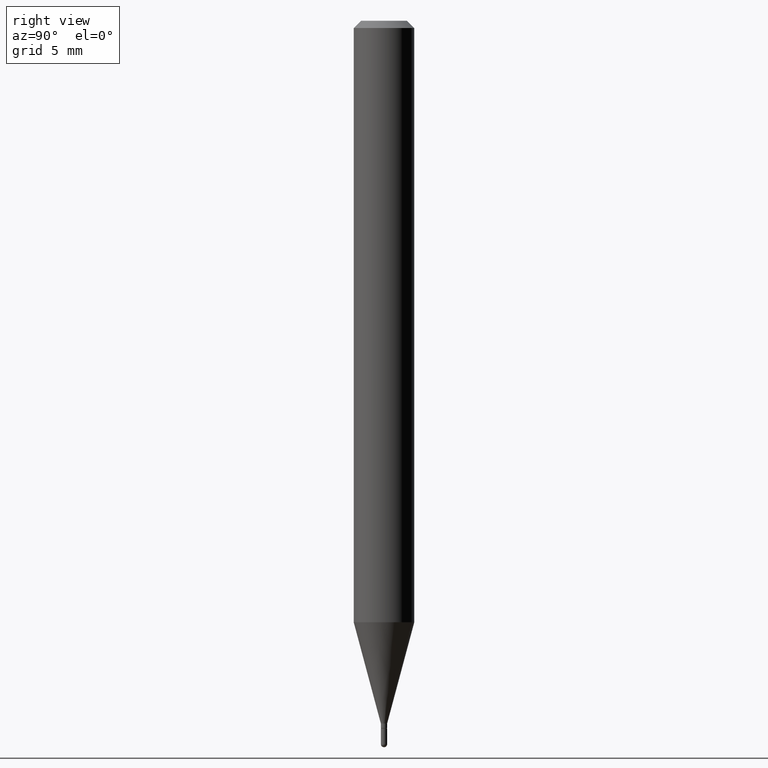
[diagram: clean part render]
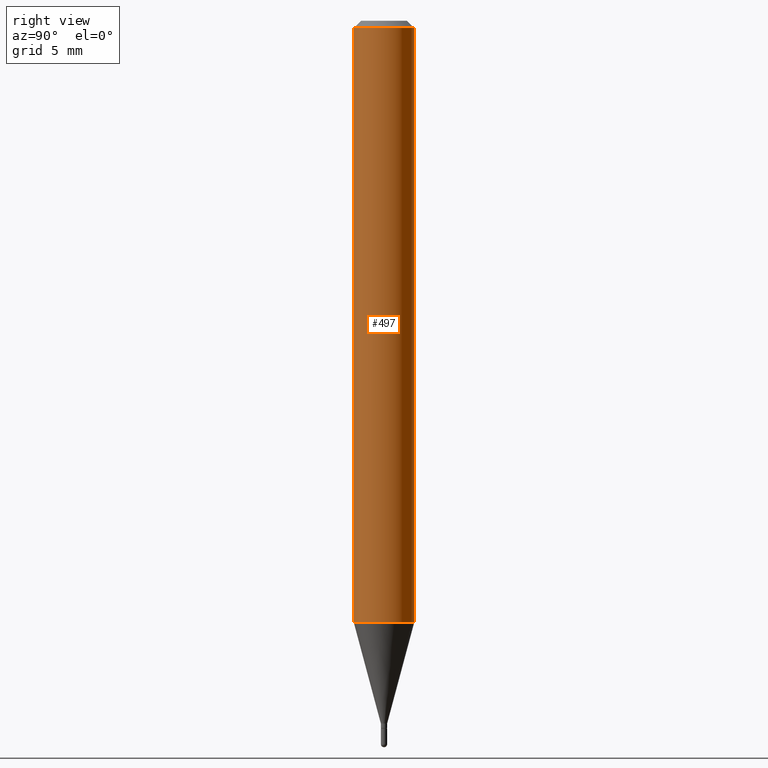
[diagram: same view with one face highlighted and labeled with its STEP entity id]
A machine part, right view. The second image highlights one B-rep face of the part: STEP entity #497.
In plain terms, the highlighted cylindrical surface (edge-blend (fillet) strip) has radius 1.5875 mm, axis along (-0, 0, 1).
Its self-contained STEP definition (entity closure, byte-faithful):
#9 = DIRECTION ( 'NONE',  ( -2.445480254154680147E-29, 3.491464944699181340E-15, 1.000000000000000000 ) ) ;
#18 = EDGE_CURVE ( 'NONE', #498, #44, #209, .T. ) ;
#19 = CARTESIAN_POINT ( 'NONE',  ( 3.668220381232022480E-31, -5.237197417048775166E-17, -0.01500000000000000812 ) ) ;
#28 = DIRECTION ( 'NONE',  ( -2.445480254154680427E-29, 3.491464944699181340E-15, 1.000000000000000000 ) ) ;
#44 = VERTEX_POINT ( 'NONE', #441 ) ;
#48 = CARTESIAN_POINT ( 'NONE',  ( 4.440892098500927901E-16, 0.06249999999999564237, -1.242005154776143705 ) ) ;
#100 = ORIENTED_EDGE ( 'NONE', *, *, #478, .T. ) ;
#103 = EDGE_CURVE ( 'NONE', #333, #264, #363, .T. ) ;
#108 = DIRECTION ( 'NONE',  ( -2.445480254154680147E-29, 3.491464944699181340E-15, 1.000000000000000000 ) ) ;
#123 = CIRCLE ( 'NONE', #247, 0.06250000000000000000 ) ;
#158 = VECTOR ( 'NONE', #325, 39.37007874015748143 ) ;
#161 = EDGE_CURVE ( 'NONE', #264, #44, #123, .T. ) ;
#176 = CARTESIAN_POINT ( 'NONE',  ( 4.440892098500625669E-16, 0.06250000000000000000, -2.182165590436988338E-16 ) ) ;
#178 = DIRECTION ( 'NONE',  ( -6.982962677686265922E-15, -1.000000000000000000, 3.483106191921935554E-15 ) ) ;
#186 = ORIENTED_EDGE ( 'NONE', *, *, #103, .F. ) ;
#208 = AXIS2_PLACEMENT_3D ( 'NONE', #296, #108, #459 ) ;
#209 = LINE ( 'NONE', #176, #158 ) ;
#233 = ORIENTED_EDGE ( 'NONE', *, *, #161, .F. ) ;
#247 = AXIS2_PLACEMENT_3D ( 'NONE', #19, #338, #178 ) ;
#264 = VERTEX_POINT ( 'NONE', #310 ) ;
#284 = DIRECTION ( 'NONE',  ( -6.982962677686265922E-15, -1.000000000000000000, 3.491464944699181340E-15 ) ) ;
#296 = CARTESIAN_POINT ( 'NONE',  ( 3.037299081563385917E-29, -4.336417459036585506E-15, -1.242005154776143261 ) ) ;
#310 = CARTESIAN_POINT ( 'NONE',  ( -4.364351673553912750E-16, -0.06250000000000005551, -0.01499999999999979128 ) ) ;
#315 = AXIS2_PLACEMENT_3D ( 'NONE', #394, #9, #284 ) ;
#323 = CYLINDRICAL_SURFACE ( 'NONE', #315, 0.06250000000000000000 ) ;
#325 = DIRECTION ( 'NONE',  ( -2.445480254154680427E-29, 3.491464944699181340E-15, 1.000000000000000000 ) ) ;
#333 = VERTEX_POINT ( 'NONE', #502 ) ;
#338 = DIRECTION ( 'NONE',  ( -2.445480254154680147E-29, 3.491464944699181340E-15, 1.000000000000000000 ) ) ;
#346 = EDGE_LOOP ( 'NONE', ( #100, #454, #233, #186 ) ) ;
#363 = LINE ( 'NONE', #489, #511 ) ;
#394 = CARTESIAN_POINT ( 'NONE',  ( 0.000000000000000000, 0.000000000000000000, 0.000000000000000000 ) ) ;
#436 = FACE_OUTER_BOUND ( 'NONE', #346, .T. ) ;
#441 = CARTESIAN_POINT ( 'NONE',  ( 4.440892098500930859E-16, 0.06249999999999993755, -0.01500000000000022669 ) ) ;
#454 = ORIENTED_EDGE ( 'NONE', *, *, #18, .T. ) ;
#459 = DIRECTION ( 'NONE',  ( -6.982962677686265922E-15, -1.000000000000000000, 4.370956789862821150E-15 ) ) ;
#470 = CIRCLE ( 'NONE', #208, 0.06250000000000000000 ) ;
#478 = EDGE_CURVE ( 'NONE', #333, #498, #470, .T. ) ;
#489 = CARTESIAN_POINT ( 'NONE',  ( -4.364351673553916201E-16, -0.06250000000000000000, 2.182165590436988338E-16 ) ) ;
#497 = ADVANCED_FACE ( 'NONE', ( #436 ), #323, .T. ) ;
#498 = VERTEX_POINT ( 'NONE', #48 ) ;
#502 = CARTESIAN_POINT ( 'NONE',  ( -4.364351673553612983E-16, -0.06250000000000432987, -1.242005154776143039 ) ) ;
#511 = VECTOR ( 'NONE', #28, 39.37007874015748143 ) ;